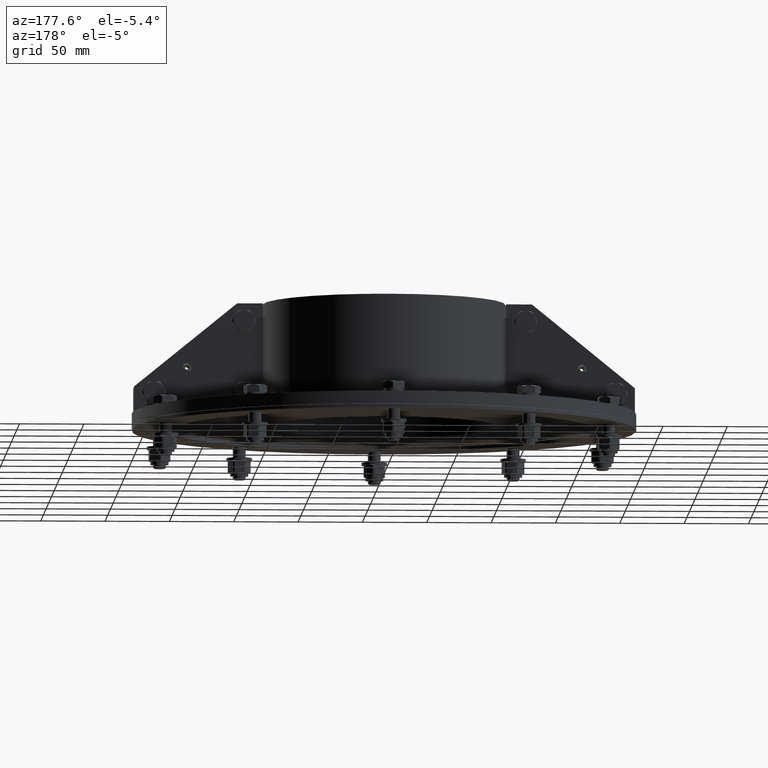
[diagram: clean part render]
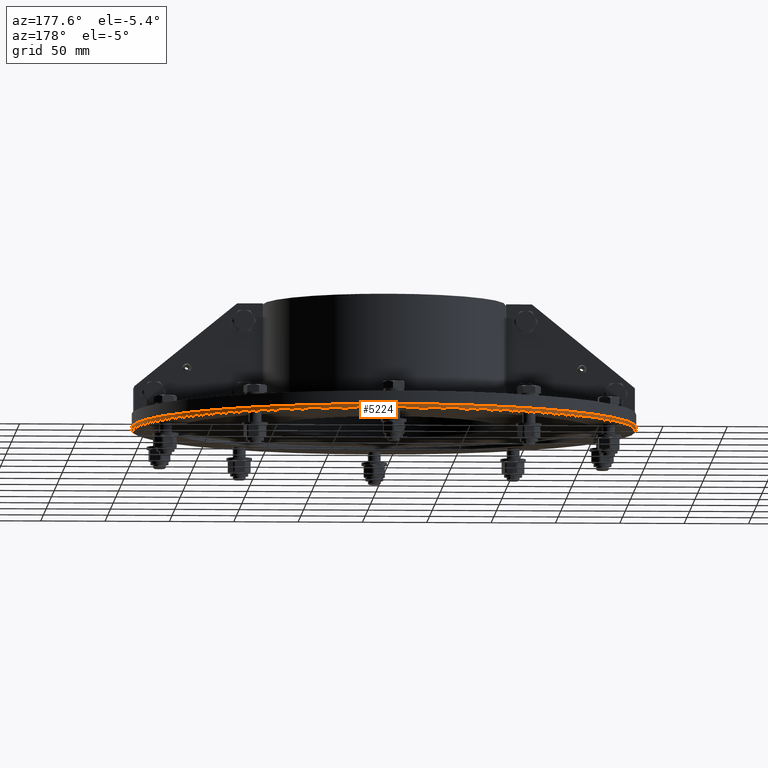
[diagram: same view with one face highlighted and labeled with its STEP entity id]
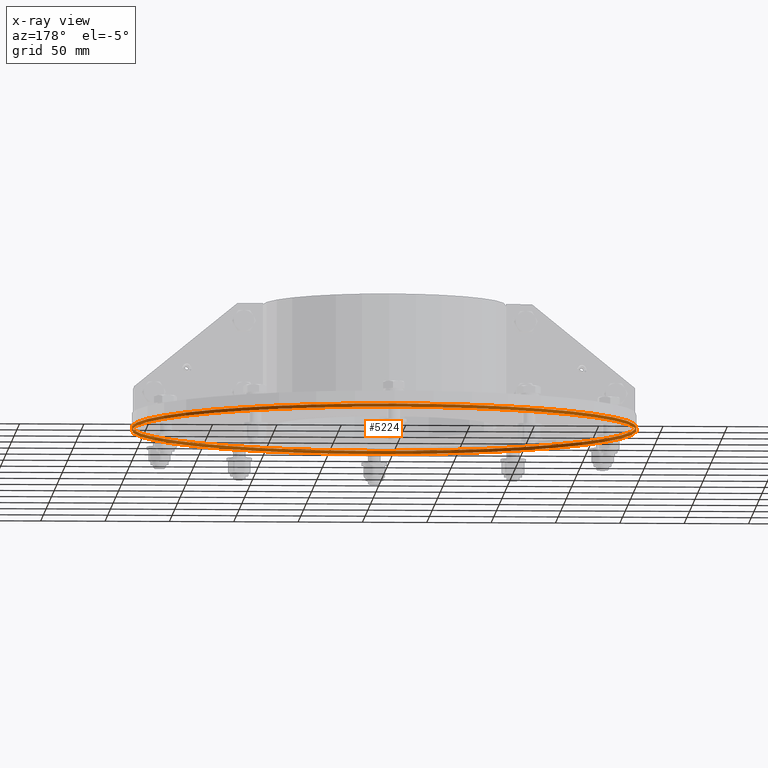
[diagram: x-ray of the same camera — body ghosted, the highlighted face saturated]
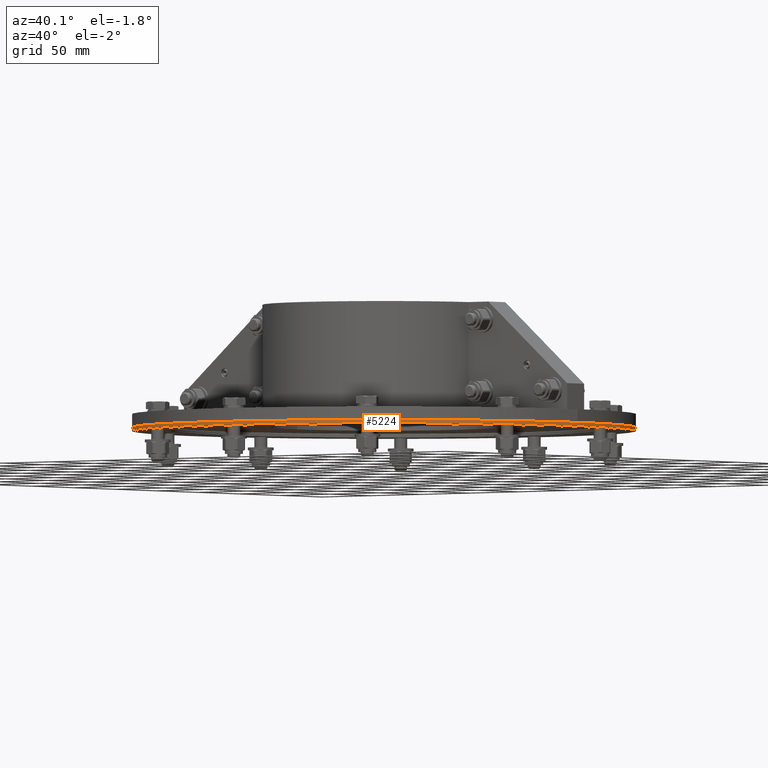
[diagram: same view with one face highlighted and labeled with its STEP entity id]
A machine part, auxiliary view. The second image highlights one B-rep face of the part: STEP entity #5224.
The next image is the same camera in x-ray: the body ghosted, the highlighted face saturated — about 5% of this face is hidden behind the body in this view.
A second angle (auxiliary view) of the same face is appended — the face is thin or edge-on in the first view.
In plain terms, the highlighted cylindrical surface (bore or boss wall) has radius 196 mm, axis along (-0, -0, 1).
Its self-contained STEP definition (entity closure, byte-faithful):
#5182=CARTESIAN_POINT('',(196.0,-2.400308E-014,0.25));
#5183=VERTEX_POINT('',#5182);
#5184=CARTESIAN_POINT('',(0.0,0.0,0.25));
#5185=DIRECTION('',(0.0,0.0,-1.0));
#5186=DIRECTION('',(-1.0,0.0,0.0));
#5187=AXIS2_PLACEMENT_3D('',#5184,#5185,#5186);
#5188=CIRCLE('',#5187,196.0);
#5189=EDGE_CURVE('',#5183,#5183,#5188,.T.);
#5205=CARTESIAN_POINT('',(0.0,0.0,0.0));
#5206=DIRECTION('',(0.0,0.0,1.0));
#5207=DIRECTION('',(-1.0,0.0,0.0));
#5208=AXIS2_PLACEMENT_3D('',#5205,#5206,#5207);
#5209=CYLINDRICAL_SURFACE('',#5208,196.0);
#5210=CARTESIAN_POINT('',(196.0,2.400308E-014,2.75));
#5211=VERTEX_POINT('',#5210);
#5212=CARTESIAN_POINT('',(0.0,0.0,2.75));
#5213=DIRECTION('',(0.0,0.0,1.0));
#5214=DIRECTION('',(-1.0,0.0,0.0));
#5215=AXIS2_PLACEMENT_3D('',#5212,#5213,#5214);
#5216=CIRCLE('',#5215,196.0);
#5217=EDGE_CURVE('',#5211,#5211,#5216,.T.);
#5218=ORIENTED_EDGE('',*,*,#5217,.F.);
#5219=EDGE_LOOP('',(#5218));
#5220=FACE_OUTER_BOUND('',#5219,.T.);
#5221=ORIENTED_EDGE('',*,*,#5189,.F.);
#5222=EDGE_LOOP('',(#5221));
#5223=FACE_BOUND('',#5222,.T.);
#5224=ADVANCED_FACE('',(#5220,#5223),#5209,.T.);